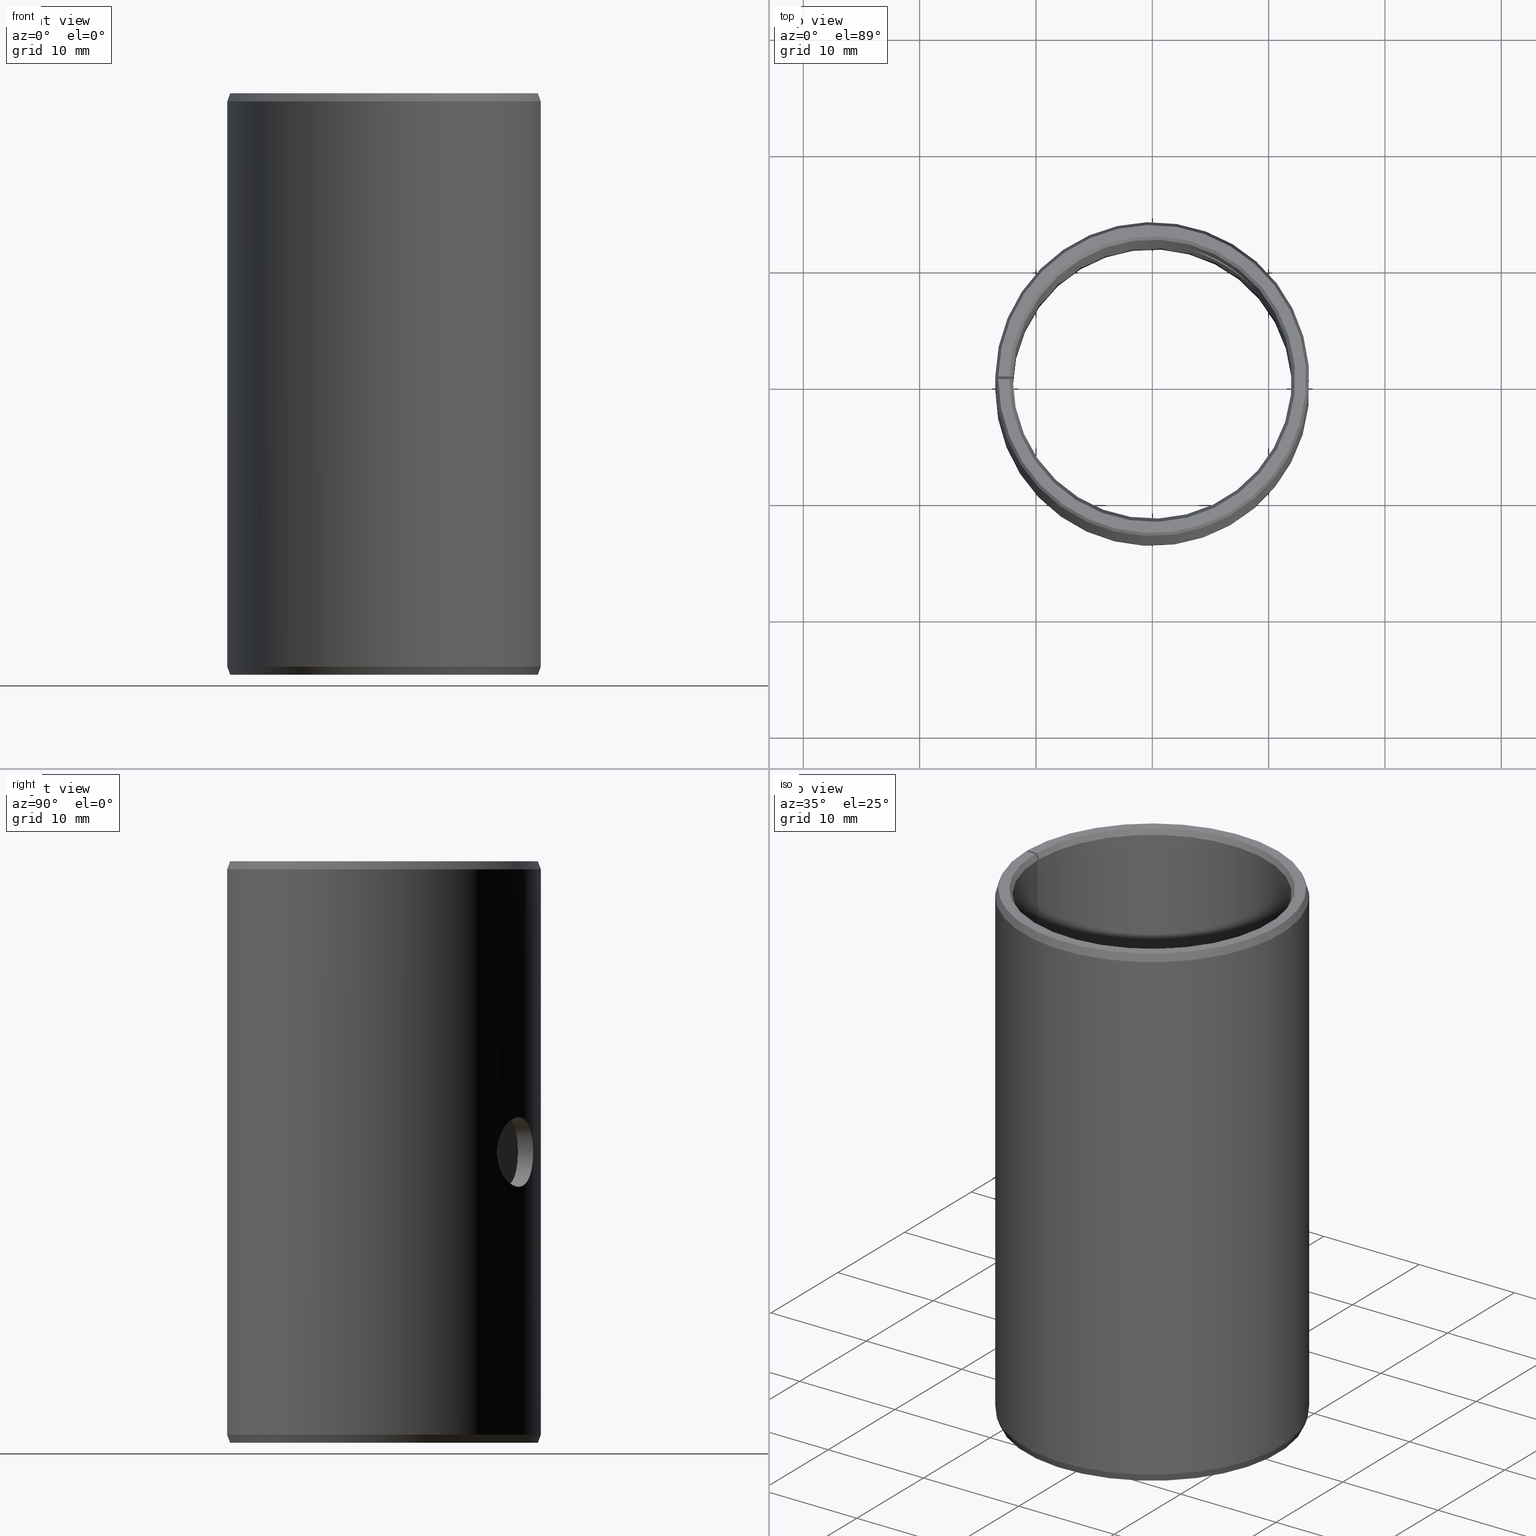
[diagram: canonical four-view strip — front | top / right | iso, engineering-drawing reading convention]
A machine part, canonical four-view strip (front | top / right | iso — engineering-drawing reading convention). The complete STEP part file that produces these views, byte-faithful:
ISO-10303-21;
HEADER;
FILE_DESCRIPTION(('STEP AP203'),'1');
FILE_NAME('440-POM2450LMB.stp','2016-09-21T04:27:03',(' '),(' '),'Spatial InterOp 3D',' ',' ');
FILE_SCHEMA(('CONFIG_CONTROL_DESIGN'));
ENDSEC;
DATA;
#1=DESIGN_CONTEXT('',#51,'design');
#2=APPLICATION_PROTOCOL_DEFINITION('INTERNATIONAL STANDARD','config_control_design',1994,#51);
#3=PRODUCT_CATEGORY_RELATIONSHIP('NONE','NONE',#52,#53);
#4=DATE_AND_TIME(#54,#55);
#5=DATE_TIME_ROLE('creation_date');
#6=DATE_TIME_ROLE('classification_date');
#7=PERSON_AND_ORGANIZATION_ROLE('creator');
#8=PERSON_AND_ORGANIZATION_ROLE('design_supplier');
#9=PERSON_AND_ORGANIZATION_ROLE('classification_officer');
#10=PERSON_AND_ORGANIZATION_ROLE('design_owner');
#11=APPROVAL_PERSON_ORGANIZATION(#56,#57,#58);
#12=APPROVAL_DATE_TIME(#4,#57);
#13=CC_DESIGN_APPROVAL(#57,(#59,#60,#61));
#14=CC_DESIGN_DATE_AND_TIME_ASSIGNMENT(#4,#5,(#61));
#15=CC_DESIGN_DATE_AND_TIME_ASSIGNMENT(#4,#6,(#59));
#16=CC_DESIGN_PERSON_AND_ORGANIZATION_ASSIGNMENT(#56,#10,(#62));
#17=CC_DESIGN_PERSON_AND_ORGANIZATION_ASSIGNMENT(#56,#7,(#61));
#18=CC_DESIGN_PERSON_AND_ORGANIZATION_ASSIGNMENT(#56,#7,(#60));
#19=CC_DESIGN_PERSON_AND_ORGANIZATION_ASSIGNMENT(#56,#8,(#60));
#20=CC_DESIGN_SECURITY_CLASSIFICATION(#59,(#60));
#21=CC_DESIGN_PERSON_AND_ORGANIZATION_ASSIGNMENT(#56,#9,(#59));
#22=SHAPE_DEFINITION_REPRESENTATION(#63,#64);
#23=DESIGN_CONTEXT('',#65,'design');
#24=APPLICATION_PROTOCOL_DEFINITION('INTERNATIONAL STANDARD','config_control_design',1994,#65);
#25=PRODUCT_CATEGORY_RELATIONSHIP('NONE','NONE',#66,#67);
#26=DATE_AND_TIME(#68,#69);
#27=DATE_TIME_ROLE('creation_date');
#28=DATE_TIME_ROLE('classification_date');
#29=PERSON_AND_ORGANIZATION_ROLE('creator');
#30=PERSON_AND_ORGANIZATION_ROLE('design_supplier');
#31=PERSON_AND_ORGANIZATION_ROLE('classification_officer');
#32=PERSON_AND_ORGANIZATION_ROLE('design_owner');
#33=APPROVAL_PERSON_ORGANIZATION(#70,#71,#72);
#34=APPROVAL_DATE_TIME(#26,#71);
#35=CC_DESIGN_APPROVAL(#71,(#73,#74,#75));
#36=CC_DESIGN_DATE_AND_TIME_ASSIGNMENT(#26,#27,(#75));
#37=CC_DESIGN_DATE_AND_TIME_ASSIGNMENT(#26,#28,(#73));
#38=CC_DESIGN_PERSON_AND_ORGANIZATION_ASSIGNMENT(#70,#32,(#76));
#39=CC_DESIGN_PERSON_AND_ORGANIZATION_ASSIGNMENT(#70,#29,(#75));
#40=CC_DESIGN_PERSON_AND_ORGANIZATION_ASSIGNMENT(#70,#29,(#74));
#41=CC_DESIGN_PERSON_AND_ORGANIZATION_ASSIGNMENT(#70,#30,(#74));
#42=CC_DESIGN_SECURITY_CLASSIFICATION(#73,(#74));
#43=CC_DESIGN_PERSON_AND_ORGANIZATION_ASSIGNMENT(#70,#31,(#73));
#44=CONTEXT_DEPENDENT_SHAPE_REPRESENTATION(#77,#78);
#45=SHAPE_DEFINITION_REPRESENTATION(#79,#80);
#46=SHAPE_REPRESENTATION_RELATIONSHIP('NONE','NONE',#80,#81);
#47= (GEOMETRIC_REPRESENTATION_CONTEXT(3)GLOBAL_UNCERTAINTY_ASSIGNED_CONTEXT((#84))GLOBAL_UNIT_ASSIGNED_CONTEXT((#86,#87,#88))REPRESENTATION_CONTEXT('NONE','WORKSPACE'));
#51=APPLICATION_CONTEXT('CONFIGURATION CONTROLLED 3D DESIGNS OF MECHANICAL PARTS AND ASSEMBLIES');
#52=PRODUCT_CATEGORY('part','NONE');
#53=PRODUCT_RELATED_PRODUCT_CATEGORY('detail',' ',(#62));
#54=CALENDAR_DATE(2016,21,8);
#55=LOCAL_TIME(6,27,3.0,#90);
#56=PERSON_AND_ORGANIZATION(#91,#92);
#57=APPROVAL(#93,'SOLID MODEL');
#58=APPROVAL_ROLE('APPROVED');
#59=SECURITY_CLASSIFICATION('','',#94);
#60=PRODUCT_DEFINITION_FORMATION_WITH_SPECIFIED_SOURCE(' ','NONE',#62,.NOT_KNOWN.);
#61=PRODUCT_DEFINITION('NONE','NONE',#60,#1);
#62=PRODUCT('','','PART--DESC',(#95));
#63=PRODUCT_DEFINITION_SHAPE('NONE','NONE',#61);
#64=SHAPE_REPRESENTATION('',(#96,#97),#98);
#65=APPLICATION_CONTEXT('CONFIGURATION CONTROLLED 3D DESIGNS OF MECHANICAL PARTS AND ASSEMBLIES');
#66=PRODUCT_CATEGORY('part','NONE');
#67=PRODUCT_RELATED_PRODUCT_CATEGORY('detail',' ',(#76));
#68=CALENDAR_DATE(2016,21,8);
#69=LOCAL_TIME(6,27,3.0,#99);
#70=PERSON_AND_ORGANIZATION(#100,#101);
#71=APPROVAL(#102,'SOLID MODEL');
#72=APPROVAL_ROLE('APPROVED');
#73=SECURITY_CLASSIFICATION('','',#103);
#74=PRODUCT_DEFINITION_FORMATION_WITH_SPECIFIED_SOURCE(' ','NONE',#76,.NOT_KNOWN.);
#75=PRODUCT_DEFINITION('440-POM2450LMB','440-POM2450LMB',#74,#23);
#76=PRODUCT('440-POM2450LMB','440-POM2450LMB','PART-440-POM2450LMB-DESC',(#104));
#77=(REPRESENTATION_RELATIONSHIP('','',#80,#64)REPRESENTATION_RELATIONSHIP_WITH_TRANSFORMATION(#107)SHAPE_REPRESENTATION_RELATIONSHIP());
#78=PRODUCT_DEFINITION_SHAPE('NAUO-PROD-DEF','NAUO-PROD-DEF',#109);
#79=PRODUCT_DEFINITION_SHAPE('NONE','NONE',#75);
#80=SHAPE_REPRESENTATION('440-POM2450LMB',(#96),#98);
#81=ADVANCED_BREP_SHAPE_REPRESENTATION('',(#110),#47);
#84=UNCERTAINTY_MEASURE_WITH_UNIT(LENGTH_MEASURE(1.0E-006),#86,'','');
#86= (CONVERSION_BASED_UNIT('METRE',#113)LENGTH_UNIT()NAMED_UNIT(#116));
#87= (NAMED_UNIT(#118)PLANE_ANGLE_UNIT()SI_UNIT($,.RADIAN.));
#88= (NAMED_UNIT(#118)SOLID_ANGLE_UNIT()SI_UNIT($,.STERADIAN.));
#90=COORDINATED_UNIVERSAL_TIME_OFFSET(1,0,.AHEAD.);
#91=PERSON('','UNSPECIFIED',$,$,$,$);
#92=ORGANIZATION('UNSPECIFIED','UNSPECIFIED','UNSPECIFIED');
#93=APPROVAL_STATUS('approved');
#94=SECURITY_CLASSIFICATION_LEVEL('unclassified');
#95=MECHANICAL_CONTEXT('',#51,'mechanical');
#96=AXIS2_PLACEMENT_3D('',#124,#125,#126);
#97=AXIS2_PLACEMENT_3D('',#127,#128,#129);
#98= (GEOMETRIC_REPRESENTATION_CONTEXT(3)GLOBAL_UNCERTAINTY_ASSIGNED_CONTEXT((#132))GLOBAL_UNIT_ASSIGNED_CONTEXT((#134,#135,#136))REPRESENTATION_CONTEXT('NONE','WORKSPACE'));
#99=COORDINATED_UNIVERSAL_TIME_OFFSET(1,0,.AHEAD.);
#100=PERSON('','UNSPECIFIED',$,$,$,$);
#101=ORGANIZATION('UNSPECIFIED','UNSPECIFIED','UNSPECIFIED');
#102=APPROVAL_STATUS('approved');
#103=SECURITY_CLASSIFICATION_LEVEL('unclassified');
#104=MECHANICAL_CONTEXT('',#65,'mechanical');
#107=ITEM_DEFINED_TRANSFORMATION('','',#96,#97);
#109=NEXT_ASSEMBLY_USAGE_OCCURRENCE('440-POM2450LMB','440-POM2450LMB','440-POM2450LMB',#61,#75,$);
#110=MANIFOLD_SOLID_BREP('',#138);
#113=LENGTH_MEASURE_WITH_UNIT(LENGTH_MEASURE(1.0),#139);
#116=DIMENSIONAL_EXPONENTS(1.0,0.0,0.0,0.0,0.0,0.0,0.0);
#118=DIMENSIONAL_EXPONENTS(0.0,0.0,0.0,0.0,0.0,0.0,0.0);
#124=CARTESIAN_POINT('',(0.0,0.0,0.0));
#125=DIRECTION('',(0.0,0.0,1.0));
#126=DIRECTION('',(1.0,0.0,0.0));
#127=CARTESIAN_POINT('',(0.0,0.0,0.0));
#128=DIRECTION('',(5.48707263966374E-016,-5.48707263966376E-016,1.0));
#129=DIRECTION('',(1.39349996950756E-015,1.0,5.48707263966375E-016));
#132=UNCERTAINTY_MEASURE_WITH_UNIT(LENGTH_MEASURE(1.0E-006),#134,'','');
#134= (CONVERSION_BASED_UNIT('METRE',#142)LENGTH_UNIT()NAMED_UNIT(#145));
#135= (NAMED_UNIT(#147)PLANE_ANGLE_UNIT()SI_UNIT($,.RADIAN.));
#136= (NAMED_UNIT(#147)SOLID_ANGLE_UNIT()SI_UNIT($,.STERADIAN.));
#138=CLOSED_SHELL('',(#153,#154,#155,#156,#157,#158,#159,#160,#161,#162,#163));
#139= (NAMED_UNIT(#116)LENGTH_UNIT()SI_UNIT($,.METRE.));
#142=LENGTH_MEASURE_WITH_UNIT(LENGTH_MEASURE(1.0),#165);
#145=DIMENSIONAL_EXPONENTS(1.0,0.0,0.0,0.0,0.0,0.0,0.0);
#147=DIMENSIONAL_EXPONENTS(0.0,0.0,0.0,0.0,0.0,0.0,0.0);
#153=ADVANCED_FACE('',(#166),#167,.F.);
#154=ADVANCED_FACE('',(#168),#169,.T.);
#155=ADVANCED_FACE('',(#170),#171,.T.);
#156=ADVANCED_FACE('',(#172),#173,.T.);
#157=ADVANCED_FACE('',(#174),#175,.T.);
#158=ADVANCED_FACE('',(#176),#177,.F.);
#159=ADVANCED_FACE('',(#178),#179,.T.);
#160=ADVANCED_FACE('',(#180),#181,.F.);
#161=ADVANCED_FACE('',(#182,#183),#184,.F.);
#162=ADVANCED_FACE('',(#185,#186),#187,.T.);
#163=ADVANCED_FACE('',(#188,#189),#190,.F.);
#165= (NAMED_UNIT(#145)LENGTH_UNIT()SI_UNIT($,.METRE.));
#166=FACE_OUTER_BOUND('',#192,.T.);
#167=CONICAL_SURFACE('',#193,0.012,0.52359877559829);
#168=FACE_OUTER_BOUND('',#194,.T.);
#169=PLANE('',#195);
#170=FACE_OUTER_BOUND('',#196,.T.);
#171=CONICAL_SURFACE('',#197,0.0132452208360137,0.349065850398869);
#172=FACE_OUTER_BOUND('',#198,.T.);
#173=CONICAL_SURFACE('',#199,0.0135,0.349065850398884);
#174=FACE_OUTER_BOUND('',#200,.T.);
#175=PLANE('',#201);
#176=FACE_OUTER_BOUND('',#202,.T.);
#177=CONICAL_SURFACE('',#203,0.0122886751345948,0.5235987755983);
#178=FACE_OUTER_BOUND('',#204,.T.);
#179=PLANE('',#205);
#180=FACE_OUTER_BOUND('',#206,.T.);
#181=PLANE('',#207);
#182=FACE_OUTER_BOUND('',#208,.T.);
#183=FACE_BOUND('',#209,.T.);
#184=CYLINDRICAL_SURFACE('',#210,0.012);
#185=FACE_OUTER_BOUND('',#211,.T.);
#186=FACE_BOUND('',#212,.T.);
#187=CYLINDRICAL_SURFACE('',#213,0.0135);
#188=FACE_OUTER_BOUND('',#214,.T.);
#189=FACE_OUTER_BOUND('',#215,.T.);
#190=CYLINDRICAL_SURFACE('',#216,0.003);
#192=EDGE_LOOP('',(#217,#218,#219,#220));
#193=AXIS2_PLACEMENT_3D('',#221,#222,#223);
#194=EDGE_LOOP('',(#224,#225,#226,#227));
#195=AXIS2_PLACEMENT_3D('',#228,#229,#230);
#196=EDGE_LOOP('',(#231,#232,#233,#234));
#197=AXIS2_PLACEMENT_3D('',#235,#236,#237);
#198=EDGE_LOOP('',(#238,#239,#240,#241));
#199=AXIS2_PLACEMENT_3D('',#242,#243,#244);
#200=EDGE_LOOP('',(#245,#246,#247,#248));
#201=AXIS2_PLACEMENT_3D('',#249,#250,#251);
#202=EDGE_LOOP('',(#252,#253,#254,#255));
#203=AXIS2_PLACEMENT_3D('',#256,#257,#258);
#204=EDGE_LOOP('',(#259,#260,#261,#262,#263,#264,#265,#266));
#205=AXIS2_PLACEMENT_3D('',#267,#268,#269);
#206=EDGE_LOOP('',(#270,#271,#272,#273,#274,#275,#276,#277));
#207=AXIS2_PLACEMENT_3D('',#278,#279,#280);
#208=EDGE_LOOP('',(#281,#282,#283,#284));
#209=EDGE_LOOP('',(#285));
#210=AXIS2_PLACEMENT_3D('',#286,#287,#288);
#211=EDGE_LOOP('',(#289,#290,#291,#292));
#212=EDGE_LOOP('',(#293));
#213=AXIS2_PLACEMENT_3D('',#294,#295,#296);
#214=EDGE_LOOP('',(#297));
#215=EDGE_LOOP('',(#298));
#216=AXIS2_PLACEMENT_3D('',#299,#300,#301);
#217=ORIENTED_EDGE('',*,*,#302,.T.);
#218=ORIENTED_EDGE('',*,*,#303,.F.);
#219=ORIENTED_EDGE('',*,*,#304,.F.);
#220=ORIENTED_EDGE('',*,*,#305,.T.);
#221=CARTESIAN_POINT('',(-6.93889390390723E-018,-6.93889390390723E-018,0.0005));
#222=DIRECTION('',(6.12323399573677E-017,-0.0,-1.0));
#223=DIRECTION('',(-1.0,0.0,-6.12323399573677E-017));
#224=ORIENTED_EDGE('',*,*,#306,.T.);
#225=ORIENTED_EDGE('',*,*,#307,.F.);
#226=ORIENTED_EDGE('',*,*,#302,.F.);
#227=ORIENTED_EDGE('',*,*,#308,.T.);
#228=CARTESIAN_POINT('',(0.000214466953024683,0.0122868035098503,-9.52879038713218E-020));
#229=DIRECTION('',(6.12323399573677E-017,0.0,-1.0));
#230=DIRECTION('',(-1.0,0.0,-6.12323399573677E-017));
#231=ORIENTED_EDGE('',*,*,#309,.T.);
#232=ORIENTED_EDGE('',*,*,#310,.F.);
#233=ORIENTED_EDGE('',*,*,#306,.F.);
#234=ORIENTED_EDGE('',*,*,#311,.T.);
#235=CARTESIAN_POINT('',(-6.93889390390723E-018,-6.93889390390723E-018,-1.0842021724855E-019));
#236=DIRECTION('',(-6.12323399573677E-017,0.0,1.0));
#237=DIRECTION('',(1.0,0.0,6.12323399573677E-017));
#238=ORIENTED_EDGE('',*,*,#312,.T.);
#239=ORIENTED_EDGE('',*,*,#313,.F.);
#240=ORIENTED_EDGE('',*,*,#314,.F.);
#241=ORIENTED_EDGE('',*,*,#315,.T.);
#242=CARTESIAN_POINT('',(-1.04083408558608E-017,-6.93889390390723E-018,0.0493));
#243=DIRECTION('',(6.12323399573677E-017,-0.0,-1.0));
#244=DIRECTION('',(-1.0,0.0,-6.12323399573677E-017));
#245=ORIENTED_EDGE('',*,*,#316,.T.);
#246=ORIENTED_EDGE('',*,*,#317,.T.);
#247=ORIENTED_EDGE('',*,*,#318,.F.);
#248=ORIENTED_EDGE('',*,*,#312,.F.);
#249=CARTESIAN_POINT('',(0.000231160977381676,0.0132432035247257,0.05));
#250=DIRECTION('',(-6.12323399573677E-017,0.0,1.0));
#251=DIRECTION('',(1.0,0.0,6.12323399573677E-017));
#252=ORIENTED_EDGE('',*,*,#319,.T.);
#253=ORIENTED_EDGE('',*,*,#320,.F.);
#254=ORIENTED_EDGE('',*,*,#317,.F.);
#255=ORIENTED_EDGE('',*,*,#321,.T.);
#256=CARTESIAN_POINT('',(-1.04083408558608E-017,-6.93889390390723E-018,0.05));
#257=DIRECTION('',(-6.12323399573677E-017,0.0,1.0));
#258=DIRECTION('',(1.0,0.0,6.12323399573677E-017));
#259=ORIENTED_EDGE('',*,*,#320,.T.);
#260=ORIENTED_EDGE('',*,*,#322,.T.);
#261=ORIENTED_EDGE('',*,*,#303,.T.);
#262=ORIENTED_EDGE('',*,*,#307,.T.);
#263=ORIENTED_EDGE('',*,*,#310,.T.);
#264=ORIENTED_EDGE('',*,*,#323,.T.);
#265=ORIENTED_EDGE('',*,*,#313,.T.);
#266=ORIENTED_EDGE('',*,*,#318,.T.);
#267=CARTESIAN_POINT('',(-6.93889390390723E-018,-0.014,0.0));
#268=DIRECTION('',(1.0,0.0,0.0));
#269=DIRECTION('',(0.0,0.0,-1.0));
#270=ORIENTED_EDGE('',*,*,#321,.F.);
#271=ORIENTED_EDGE('',*,*,#316,.F.);
#272=ORIENTED_EDGE('',*,*,#315,.F.);
#273=ORIENTED_EDGE('',*,*,#324,.F.);
#274=ORIENTED_EDGE('',*,*,#311,.F.);
#275=ORIENTED_EDGE('',*,*,#308,.F.);
#276=ORIENTED_EDGE('',*,*,#305,.F.);
#277=ORIENTED_EDGE('',*,*,#325,.F.);
#278=CARTESIAN_POINT('',(-0.000244333690121977,-0.0139978677321895,-1.49611235765866E-020));
#279=DIRECTION('',(0.999847695156391,-0.0174524064372836,-9.3259819610035E-021));
#280=DIRECTION('',(9.32598196100733E-021,1.0686516840419E-018,-1.0));
#281=ORIENTED_EDGE('',*,*,#304,.T.);
#282=ORIENTED_EDGE('',*,*,#322,.F.);
#283=ORIENTED_EDGE('',*,*,#319,.F.);
#284=ORIENTED_EDGE('',*,*,#325,.T.);
#285=ORIENTED_EDGE('',*,*,#326,.T.);
#286=CARTESIAN_POINT('',(-6.93889390390723E-018,-6.93889390390723E-018,0.0));
#287=DIRECTION('',(6.12323399573677E-017,0.0,-1.0));
#288=DIRECTION('',(-1.0,0.0,-6.12323399573677E-017));
#289=ORIENTED_EDGE('',*,*,#314,.T.);
#290=ORIENTED_EDGE('',*,*,#323,.F.);
#291=ORIENTED_EDGE('',*,*,#309,.F.);
#292=ORIENTED_EDGE('',*,*,#324,.T.);
#293=ORIENTED_EDGE('',*,*,#327,.T.);
#294=CARTESIAN_POINT('',(-6.93889390390723E-018,-6.93889390390723E-018,0.0));
#295=DIRECTION('',(6.12323399573677E-017,0.0,-1.0));
#296=DIRECTION('',(-1.0,0.0,-6.12323399573677E-017));
#297=ORIENTED_EDGE('',*,*,#326,.F.);
#298=ORIENTED_EDGE('',*,*,#327,.F.);
#299=CARTESIAN_POINT('',(0.00728592205598323,-0.00437782363671001,0.025));
#300=DIRECTION('',(0.857167300703911,-0.515038074907061,0.0));
#301=DIRECTION('',(-0.515038074907061,-0.857167300703911,0.0));
#302=EDGE_CURVE('',#328,#329,#330,.T.);
#303=EDGE_CURVE('',#331,#329,#332,.T.);
#304=EDGE_CURVE('',#333,#331,#334,.T.);
#305=EDGE_CURVE('',#333,#328,#335,.T.);
#306=EDGE_CURVE('',#336,#337,#338,.T.);
#307=EDGE_CURVE('',#329,#337,#339,.T.);
#308=EDGE_CURVE('',#328,#336,#340,.T.);
#309=EDGE_CURVE('',#341,#342,#343,.T.);
#310=EDGE_CURVE('',#337,#342,#344,.T.);
#311=EDGE_CURVE('',#336,#341,#345,.T.);
#312=EDGE_CURVE('',#346,#347,#348,.T.);
#313=EDGE_CURVE('',#349,#347,#350,.T.);
#314=EDGE_CURVE('',#351,#349,#352,.T.);
#315=EDGE_CURVE('',#351,#346,#353,.T.);
#316=EDGE_CURVE('',#346,#354,#355,.T.);
#317=EDGE_CURVE('',#354,#356,#357,.T.);
#318=EDGE_CURVE('',#347,#356,#358,.T.);
#319=EDGE_CURVE('',#359,#360,#361,.T.);
#320=EDGE_CURVE('',#356,#360,#362,.T.);
#321=EDGE_CURVE('',#354,#359,#363,.T.);
#322=EDGE_CURVE('',#360,#331,#364,.T.);
#323=EDGE_CURVE('',#342,#349,#365,.T.);
#324=EDGE_CURVE('',#341,#351,#366,.T.);
#325=EDGE_CURVE('',#359,#333,#367,.T.);
#326=EDGE_CURVE('',#368,#368,#369,.T.);
#327=EDGE_CURVE('',#370,#370,#371,.T.);
#328=VERTEX_POINT('',#372);
#329=VERTEX_POINT('',#373);
#330=CIRCLE('',#374,0.0122886751345948);
#331=VERTEX_POINT('',#375);
#332=LINE('',#376,#377);
#333=VERTEX_POINT('',#378);
#334=CIRCLE('',#379,0.012);
#335=LINE('',#380,#381);
#336=VERTEX_POINT('',#382);
#337=VERTEX_POINT('',#383);
#338=CIRCLE('',#384,0.0132452208360137);
#339=LINE('',#385,#386);
#340=LINE('',#387,#388);
#341=VERTEX_POINT('',#389);
#342=VERTEX_POINT('',#390);
#343=CIRCLE('',#391,0.0135);
#344=LINE('',#392,#393);
#345=LINE('',#394,#395);
#346=VERTEX_POINT('',#396);
#347=VERTEX_POINT('',#397);
#348=CIRCLE('',#398,0.0132452208360137);
#349=VERTEX_POINT('',#399);
#350=LINE('',#400,#401);
#351=VERTEX_POINT('',#402);
#352=CIRCLE('',#403,0.0135);
#353=LINE('',#404,#405);
#354=VERTEX_POINT('',#406);
#355=LINE('',#407,#408);
#356=VERTEX_POINT('',#409);
#357=CIRCLE('',#410,0.0122886751345948);
#358=LINE('',#411,#412);
#359=VERTEX_POINT('',#413);
#360=VERTEX_POINT('',#414);
#361=CIRCLE('',#415,0.012);
#362=LINE('',#416,#417);
#363=LINE('',#418,#419);
#364=LINE('',#420,#421);
#365=LINE('',#422,#423);
#366=LINE('',#424,#425);
#367=LINE('',#426,#427);
#368=VERTEX_POINT('',#428);
#369=B_SPLINE_CURVE_WITH_KNOTS('',3,(#429,#430,#431,#432,#433,#434,#435,#436,#437,#438,#439,#440,#441,#442,#443,#444,#445,#446,#447,#448,#449,#450,#451,#452,#453,#454,#455,#456,#457,#458,#459,#460,#461,#462,#463,#464,#465,#466,#467,#468,#469,#470,#471,#472,#473,#474,#475,#476,#477,#478,#479,#480,#481,#482,#483,#484,#485,#486,#487,#488,#489,#490),.UNSPECIFIED.,.T.,.F.,(2,2,2,2,2,2,2,2,2,2,2,2,2,2,2,2,2,2,2,2,2,2,2,2,2,2,2,2,2,2,2,2,2),(-0.000588468026522763,0.0,0.000588468026522759,0.00117693605304552,0.00176540407956828,0.00235387210609103,0.00294234013261379,0.00353080815913655,0.00411927618565931,0.00470774421218207,0.00529621223870483,0.00588468026522759,0.00706161631827311,0.00765008434479587,0.00823855237131864,0.0088270203978414,0.00941548842436416,0.0105924244774097,0.0111808925039324,0.0117693605304552,0.012357828556978,0.0129462965835007,0.0135347646100235,0.0141232326365463,0.014711700663069,0.0153001686895918,0.0158886367161146,0.0164771047426373,0.0170655727691601,0.0176540407956828,0.0182425088222056,0.0188309768487284,0.0194194448752511),.UNSPECIFIED.);
#370=VERTEX_POINT('',#491);
#371=B_SPLINE_CURVE_WITH_KNOTS('',3,(#492,#493,#494,#495,#496,#497,#498,#499,#500,#501,#502,#503,#504,#505,#506,#507,#508,#509,#510,#511,#512,#513,#514,#515,#516,#517,#518,#519,#520,#521,#522,#523,#524,#525,#526,#527,#528,#529,#530,#531,#532,#533,#534,#535,#536,#537,#538,#539,#540,#541,#542,#543,#544,#545,#546,#547,#548,#549,#550,#551,#552,#553),.UNSPECIFIED.,.T.,.F.,(2,2,2,2,2,2,2,2,2,2,2,2,2,2,2,2,2,2,2,2,2,2,2,2,2,2,2,2,2,2,2,2,2),(-0.000587969418490893,0.0,0.000587969418490897,0.00117593883698179,0.00176390825547269,0.00235187767396359,0.00293984709245449,0.00352781651094538,0.00411578592943628,0.00470375534792718,0.00529172476641808,0.00587969418490898,0.00646766360339988,0.00705563302189078,0.00764360244038168,0.00823157185887258,0.00881954127736347,0.00940751069585437,0.0105834495328362,0.0111714189513271,0.0117593883698179,0.0123473577883088,0.0129353272067997,0.0141112660437815,0.0146992354622724,0.0152872048807633,0.0158751742992542,0.0164631437177451,0.017051113136236,0.0176390825547269,0.0182270519732178,0.0188150213917086,0.0194029908101995),.UNSPECIFIED.);
#372=CARTESIAN_POINT('',(0.000214466953024683,0.0122868035098503,-9.52879038713219E-020));
#373=CARTESIAN_POINT('',(-6.93889390390723E-018,0.0122886751345948,-1.0842021724855E-019));
#374=AXIS2_PLACEMENT_3D('',#554,#555,#556);
#375=CARTESIAN_POINT('',(-6.93889390390723E-018,0.012,0.0005));
#376=CARTESIAN_POINT('',(-6.93889390390723E-018,0.012,0.0005));
#377=VECTOR('',#557,1.0);
#378=CARTESIAN_POINT('',(0.000209428877247395,0.0119981723418767,0.0005));
#379=AXIS2_PLACEMENT_3D('',#558,#559,#560);
#380=CARTESIAN_POINT('',(0.000209428877247395,0.0119981723418767,0.0005));
#381=VECTOR('',#561,1.0);
#382=CARTESIAN_POINT('',(0.00023116097738168,0.0132432035247257,-9.42656896966376E-020));
#383=CARTESIAN_POINT('',(-6.93889390390723E-018,0.0132452208360137,-1.0842021724855E-019));
#384=AXIS2_PLACEMENT_3D('',#562,#563,#564);
#385=CARTESIAN_POINT('',(-6.93889390390723E-018,0.0122886751345948,-1.17143063148078E-019));
#386=VECTOR('',#565,1.0);
#387=CARTESIAN_POINT('',(0.000214466953024683,0.0122868035098503,-1.04010749770849E-019));
#388=VECTOR('',#566,1.0);
#389=CARTESIAN_POINT('',(0.000235607486903322,0.0134979438846113,0.0007));
#390=CARTESIAN_POINT('',(-6.93889390390723E-018,0.0135,0.0007));
#391=AXIS2_PLACEMENT_3D('',#567,#568,#569);
#392=CARTESIAN_POINT('',(-6.93889390390723E-018,0.0132452208360137,-1.0842021724855E-019));
#393=VECTOR('',#570,1.0);
#394=CARTESIAN_POINT('',(0.00023116097738168,0.0132432035247257,-9.42656896966376E-020));
#395=VECTOR('',#571,1.0);
#396=CARTESIAN_POINT('',(0.000231160977381676,0.0132432035247257,0.05));
#397=CARTESIAN_POINT('',(-1.04083408558608E-017,0.0132452208360136,0.05));
#398=AXIS2_PLACEMENT_3D('',#572,#573,#574);
#399=CARTESIAN_POINT('',(-1.04083408558608E-017,0.0135,0.0493));
#400=CARTESIAN_POINT('',(-1.04083408558608E-017,0.0135,0.0493));
#401=VECTOR('',#575,1.0);
#402=CARTESIAN_POINT('',(0.000235607486903318,0.0134979438846113,0.0493));
#403=AXIS2_PLACEMENT_3D('',#576,#577,#578);
#404=CARTESIAN_POINT('',(0.000235607486903318,0.0134979438846113,0.0493));
#405=VECTOR('',#579,1.0);
#406=CARTESIAN_POINT('',(0.000214466953024678,0.0122868035098503,0.05));
#407=CARTESIAN_POINT('',(0.000231160977381676,0.0132432035247257,0.05));
#408=VECTOR('',#580,1.0);
#409=CARTESIAN_POINT('',(-1.04083408558608E-017,0.0122886751345948,0.05));
#410=AXIS2_PLACEMENT_3D('',#581,#582,#583);
#411=CARTESIAN_POINT('',(-1.04083408558608E-017,0.0132452208360136,0.05));
#412=VECTOR('',#584,1.0);
#413=CARTESIAN_POINT('',(0.000209428877247392,0.0119981723418767,0.0495));
#414=CARTESIAN_POINT('',(-1.04083408558608E-017,0.012,0.0495));
#415=AXIS2_PLACEMENT_3D('',#585,#586,#587);
#416=CARTESIAN_POINT('',(-1.04083408558608E-017,0.0122886751345948,0.05));
#417=VECTOR('',#588,1.0);
#418=CARTESIAN_POINT('',(0.000214466953024678,0.0122868035098503,0.05));
#419=VECTOR('',#589,1.0);
#420=CARTESIAN_POINT('',(-1.04083408558608E-017,0.012,0.0495));
#421=VECTOR('',#590,1.0);
#422=CARTESIAN_POINT('',(-6.93889390390723E-018,0.0135,0.0007));
#423=VECTOR('',#591,1.0);
#424=CARTESIAN_POINT('',(0.000235607486903322,0.0134979438846113,0.0007));
#425=VECTOR('',#592,1.0);
#426=CARTESIAN_POINT('',(0.000209428877247392,0.0119981723418767,0.0495));
#427=VECTOR('',#593,1.0);
#428=CARTESIAN_POINT('',(0.00841426981689825,-0.00855570356244505,0.025));
#429=CARTESIAN_POINT('',(0.00841426981689825,-0.00855570356244505,0.0251990449473492));
#430=CARTESIAN_POINT('',(0.00841426981689825,-0.00855570356244505,0.0248009550526508));
#431=CARTESIAN_POINT('',(0.00842875350383115,-0.00854152671398362,0.0246054011197299));
#432=CARTESIAN_POINT('',(0.00848487324014926,-0.00848578165713924,0.0242209368523515));
#433=CARTESIAN_POINT('',(0.00852721813714572,-0.00844349208644895,0.0240299884480397));
#434=CARTESIAN_POINT('',(0.00863557768804172,-0.00833263498337644,0.0236671075437146));
#435=CARTESIAN_POINT('',(0.00870116977481795,-0.00826450376791034,0.0234951236406336));
#436=CARTESIAN_POINT('',(0.00885290730711671,-0.00810175352572573,0.0231696370721684));
#437=CARTESIAN_POINT('',(0.00893944985612611,-0.00800661167262193,0.0230161759386213));
#438=CARTESIAN_POINT('',(0.00912378530128684,-0.00779590507782009,0.0227406895098723));
#439=CARTESIAN_POINT('',(0.00922235911067506,-0.00767954839458687,0.022616778036519));
#440=CARTESIAN_POINT('',(0.00943056713842511,-0.00742238334759862,0.0223974096405042));
#441=CARTESIAN_POINT('',(0.00953772956661927,-0.0072845408882955,0.0223047247102136));
#442=CARTESIAN_POINT('',(0.00975328491359259,-0.00699330069663098,0.0221548160513335));
#443=CARTESIAN_POINT('',(0.00986318922088336,-0.00683777378288039,0.0220967623942747));
#444=CARTESIAN_POINT('',(0.0100791096286791,-0.00651530513528452,0.0220193703950625));
#445=CARTESIAN_POINT('',(0.0101837970544807,-0.00635050413899659,0.0220001229658471));
#446=CARTESIAN_POINT('',(0.0103862935808339,-0.00601361213572935,0.0219998781974757));
#447=CARTESIAN_POINT('',(0.0104848899954299,-0.00583988894856468,0.0220195479996157));
#448=CARTESIAN_POINT('',(0.0106672021162408,-0.00549982001151877,0.0220964501939685));
#449=CARTESIAN_POINT('',(0.0107518694342512,-0.0053320519411269,0.0221533404516438));
#450=CARTESIAN_POINT('',(0.0109882039497349,-0.00483665906336911,0.0223799325684459));
#451=CARTESIAN_POINT('',(0.0111161988681034,-0.00452878123628558,0.0226007143265412));
#452=CARTESIAN_POINT('',(0.0112667354427916,-0.00413286905823101,0.0230175905645678));
#453=CARTESIAN_POINT('',(0.0113092079860092,-0.00401424188122855,0.0231681753053526));
#454=CARTESIAN_POINT('',(0.0113815361296043,-0.00380433417069751,0.023492352632688));
#455=CARTESIAN_POINT('',(0.0114115697038727,-0.00371241841713823,0.0236680238445403));
#456=CARTESIAN_POINT('',(0.0114584425787273,-0.00356511812991683,0.024030050386604));
#457=CARTESIAN_POINT('',(0.0114756129957759,-0.00350883200657095,0.0242170510303377));
#458=CARTESIAN_POINT('',(0.0114987190211594,-0.00343235437441769,0.0246033243785492));
#459=CARTESIAN_POINT('',(0.0115044735792664,-0.00341278298042064,0.0248024879044213));
#460=CARTESIAN_POINT('',(0.0115045473995797,-0.00341253412594953,0.0253911818354602));
#461=CARTESIAN_POINT('',(0.0114819599544979,-0.00349117518271568,0.025787447863805));
#462=CARTESIAN_POINT('',(0.011411941280585,-0.00371126977552905,0.0263295341284488));
#463=CARTESIAN_POINT('',(0.0113820518748178,-0.00380280021454025,0.02650501886439));
#464=CARTESIAN_POINT('',(0.0113095378546977,-0.00401332130110592,0.0268306594538707));
#465=CARTESIAN_POINT('',(0.011267073872376,-0.00413192024187026,0.0269811927981881));
#466=CARTESIAN_POINT('',(0.011167299282029,-0.00439444482003683,0.0272580508219462));
#467=CARTESIAN_POINT('',(0.01110969615175,-0.00453887817762387,0.0273841593998566));
#468=CARTESIAN_POINT('',(0.0109818330874716,-0.00484005224501063,0.0276011498071747));
#469=CARTESIAN_POINT('',(0.0109110873872103,-0.00499817762016606,0.0276936785840565));
#470=CARTESIAN_POINT('',(0.0107533173558032,-0.00532914377170005,0.0278455913868022));
#471=CARTESIAN_POINT('',(0.0106680111857357,-0.00549822657914197,0.0279030256154111));
#472=CARTESIAN_POINT('',(0.0104864139743404,-0.00583712944291304,0.0279799897392131));
#473=CARTESIAN_POINT('',(0.0103887086459243,-0.00600948383914492,0.0279998973420858));
#474=CARTESIAN_POINT('',(0.0101849031807297,-0.00634877236495443,0.028000101856917));
#475=CARTESIAN_POINT('',(0.0100801625787052,-0.00651364295284485,0.0279808113732937));
#476=CARTESIAN_POINT('',(0.00986556027017239,-0.00683432093816719,0.0279042799993871));
#477=CARTESIAN_POINT('',(0.00975479683318725,-0.00699120835545114,0.0278461047253107));
#478=CARTESIAN_POINT('',(0.00953852066043413,-0.00728352106721473,0.0276959547668479));
#479=CARTESIAN_POINT('',(0.00943201518175579,-0.00742053807110971,0.0276039047120967));
#480=CARTESIAN_POINT('',(0.00922414942958778,-0.00767739297901936,0.027385316288492));
#481=CARTESIAN_POINT('',(0.00912443039698272,-0.00779514950967788,0.0272601590632023));
#482=CARTESIAN_POINT('',(0.00894015176193252,-0.00800582740391201,0.026984987719451));
#483=CARTESIAN_POINT('',(0.00885420641928693,-0.00810034286897499,0.0268329099101025));
#484=CARTESIAN_POINT('',(0.0087015819869617,-0.0082640787045187,0.0265059976015387));
#485=CARTESIAN_POINT('',(0.00863601049703109,-0.00833218422150574,0.0263339858406783));
#486=CARTESIAN_POINT('',(0.0085279891471626,-0.00844271119438639,0.0259729456390652));
#487=CARTESIAN_POINT('',(0.0084853609293192,-0.00848529559037579,0.02578183154418));
#488=CARTESIAN_POINT('',(0.00842875837019892,-0.00854152349956782,0.0253951999072455));
#489=CARTESIAN_POINT('',(0.00841426981689825,-0.00855570356244505,0.0251990449473492));
#490=CARTESIAN_POINT('',(0.00841426981689825,-0.00855570356244505,0.0248009550526508));
#491=CARTESIAN_POINT('',(0.0097373045818496,-0.00935066305030242,0.025));
#492=CARTESIAN_POINT('',(0.0097373045818496,-0.00935066305030242,0.0248011380342038));
#493=CARTESIAN_POINT('',(0.0097373045818496,-0.00935066305030242,0.0251988619657962));
#494=CARTESIAN_POINT('',(0.00975124862007258,-0.00933620317293633,0.0253942724336147));
#495=CARTESIAN_POINT('',(0.00980535013140584,-0.00927936679614257,0.0257785134457349));
#496=CARTESIAN_POINT('',(0.00984618562650761,-0.0092362634345276,0.0259693750867953));
#497=CARTESIAN_POINT('',(0.00995094397365339,-0.00912330245343471,0.0263323502243402));
#498=CARTESIAN_POINT('',(0.0100144338941935,-0.00905391502510291,0.0265044058844767));
#499=CARTESIAN_POINT('',(0.0101616150589776,-0.00888841059448291,0.0268300273953469));
#500=CARTESIAN_POINT('',(0.0102457748008799,-0.00879167777232692,0.0269836987669978));
#501=CARTESIAN_POINT('',(0.0104254401307962,-0.00857786088730506,0.0272594447246968));
#502=CARTESIAN_POINT('',(0.0105216908143253,-0.00845998159078228,0.0273834104064169));
#503=CARTESIAN_POINT('',(0.0107254676840508,-0.00820009811325533,0.0276027599819277));
#504=CARTESIAN_POINT('',(0.0108307892434003,-0.00806081708683645,0.0276955610304147));
#505=CARTESIAN_POINT('',(0.0110430279866335,-0.00776751573083823,0.0278454015592844));
#506=CARTESIAN_POINT('',(0.011151470202168,-0.00761132898151323,0.0279033547054913));
#507=CARTESIAN_POINT('',(0.0113655213340163,-0.00728783516146488,0.0279806743853708));
#508=CARTESIAN_POINT('',(0.0114696785617597,-0.00712285213028316,0.0279998805778712));
#509=CARTESIAN_POINT('',(0.0116719673822203,-0.00678628957592835,0.0280001183224352));
#510=CARTESIAN_POINT('',(0.0117709435290553,-0.00661302214348635,0.0279804913064234));
#511=CARTESIAN_POINT('',(0.0119549957195799,-0.00627417331441172,0.0279036751715512));
#512=CARTESIAN_POINT('',(0.0120409475513554,-0.0061072865016386,0.0278468468710592));
#513=CARTESIAN_POINT('',(0.0122017810278606,-0.00577926518648609,0.0276959893822675));
#514=CARTESIAN_POINT('',(0.0122757253807841,-0.00561989956625982,0.027602346955519));
#515=CARTESIAN_POINT('',(0.012408164939234,-0.00532110398320117,0.0273855005688706));
#516=CARTESIAN_POINT('',(0.0124677430787785,-0.00517931082737325,0.0272607806621671));
#517=CARTESIAN_POINT('',(0.0125731940729632,-0.00491779106190762,0.0269823701575916));
#518=CARTESIAN_POINT('',(0.0126181336743616,-0.00480051170455936,0.0268315936742727));
#519=CARTESIAN_POINT('',(0.0126950233000116,-0.00459332052679019,0.0265073045544945));
#520=CARTESIAN_POINT('',(0.0127271907221988,-0.00450272410258477,0.0263316526613318));
#521=CARTESIAN_POINT('',(0.0127776373929197,-0.00435750968768635,0.0259693241368877));
#522=CARTESIAN_POINT('',(0.0127962119980307,-0.00430215378843201,0.0257823357148089));
#523=CARTESIAN_POINT('',(0.0128212352869199,-0.00422699591143713,0.0253965167723562));
#524=CARTESIAN_POINT('',(0.0128275068298501,-0.00420773912418192,0.0251973684594607));
#525=CARTESIAN_POINT('',(0.0128275851845106,-0.0042075002510057,0.0246090124931992));
#526=CARTESIAN_POINT('',(0.0128029040575054,-0.00428474481221331,0.0242130479027939));
#527=CARTESIAN_POINT('',(0.0127276372477682,-0.00450145506387575,0.0236711103480687));
#528=CARTESIAN_POINT('',(0.0126956696625482,-0.00459154457338801,0.0234957662734431));
#529=CARTESIAN_POINT('',(0.0126184889424393,-0.00479958816561294,0.0231695644096878));
#530=CARTESIAN_POINT('',(0.0125735601956689,-0.00491682404034003,0.0230189214081414));
#531=CARTESIAN_POINT('',(0.0124689579218468,-0.00517635614897084,0.0227421066911117));
#532=CARTESIAN_POINT('',(0.0124088131526058,-0.00531959335070245,0.0226157391575216));
#533=CARTESIAN_POINT('',(0.0122763781095903,-0.00561847468477794,0.0223985451244275));
#534=CARTESIAN_POINT('',(0.0122036142256951,-0.00577539911902595,0.0223060930157306));
#535=CARTESIAN_POINT('',(0.0119622646283131,-0.00626801129360359,0.022078636880194));
#536=CARTESIAN_POINT('',(0.0117766362910895,-0.00661193315673223,0.022000248105465));
#537=CARTESIAN_POINT('',(0.0114707681549133,-0.0071211434149758,0.0219998768262758));
#538=CARTESIAN_POINT('',(0.0113665357163797,-0.00728621768754947,0.0220191666072804));
#539=CARTESIAN_POINT('',(0.0111540295525194,-0.00760754409278171,0.0220955168546354));
#540=CARTESIAN_POINT('',(0.011044683709234,-0.00776517908851831,0.0221535735248373));
#541=CARTESIAN_POINT('',(0.0108315963543484,-0.00805974968161226,0.0223037267804003));
#542=CARTESIAN_POINT('',(0.0107271065680108,-0.00819794554208486,0.0223957372184096));
#543=CARTESIAN_POINT('',(0.0105239123925699,-0.00845720960991062,0.0226139418327853));
#544=CARTESIAN_POINT('',(0.0104261714734265,-0.00857697138051098,0.0227395691528716));
#545=CARTESIAN_POINT('',(0.0102465694682954,-0.00879075103656075,0.0230149464261903));
#546=CARTESIAN_POINT('',(0.0101633812549905,-0.00888640337931321,0.0231663929158435));
#547=CARTESIAN_POINT('',(0.0100149063189689,-0.00905340460691101,0.0234942260207894));
#548=CARTESIAN_POINT('',(0.00995139788985065,-0.00912280500237048,0.023666474301779));
#549=CARTESIAN_POINT('',(0.0098470237530859,-0.00923536757685161,0.0240273285059612));
#550=CARTESIAN_POINT('',(0.00980594002894295,-0.00927874523384725,0.0242180152669528));
#551=CARTESIAN_POINT('',(0.00975125258018569,-0.00933620083777607,0.0246049889158503));
#552=CARTESIAN_POINT('',(0.0097373045818496,-0.00935066305030242,0.0248011380342038));
#553=CARTESIAN_POINT('',(0.0097373045818496,-0.00935066305030242,0.0251988619657962));
#554=CARTESIAN_POINT('',(-6.93889390390723E-018,-6.93889390390723E-018,-1.0842021724855E-019));
#555=DIRECTION('',(6.12323399573677E-017,0.0,-1.0));
#556=DIRECTION('',(-1.0,0.0,-6.12323399573677E-017));
#557=DIRECTION('',(0.0,0.499999999999999,-0.866025403784439));
#558=CARTESIAN_POINT('',(-6.93889390390723E-018,-6.93889390390723E-018,0.0005));
#559=DIRECTION('',(6.12323399573677E-017,0.0,-1.0));
#560=DIRECTION('',(-1.0,0.0,-6.12323399573677E-017));
#561=DIRECTION('',(0.00872620321864171,0.499923847578191,-0.866025403784441));
#562=CARTESIAN_POINT('',(-6.93889390390723E-018,-6.93889390390723E-018,-1.0842021724855E-019));
#563=DIRECTION('',(6.12323399573677E-017,0.0,-1.0));
#564=DIRECTION('',(-1.0,0.0,-6.12323399573677E-017));
#565=DIRECTION('',(0.0,1.0,9.11911044771708E-018));
#566=DIRECTION('',(0.0174524064372836,0.999847695156391,1.0187762131759E-017));
#567=CARTESIAN_POINT('',(-6.93889390390723E-018,-6.93889390390723E-018,0.0007));
#568=DIRECTION('',(6.12323399573677E-017,0.0,-1.0));
#569=DIRECTION('',(-1.0,0.0,-6.12323399573677E-017));
#570=DIRECTION('',(0.0,0.34202014332567,0.939692620785908));
#571=DIRECTION('',(0.00596907455105756,0.341968052001229,0.939692620785908));
#572=CARTESIAN_POINT('',(-1.04083408558608E-017,-6.93889390390723E-018,0.05));
#573=DIRECTION('',(6.12323399573677E-017,0.0,-1.0));
#574=DIRECTION('',(-1.0,0.0,-6.12323399573677E-017));
#575=DIRECTION('',(0.0,-0.342020143325686,0.939692620785902));
#576=CARTESIAN_POINT('',(-1.04083408558608E-017,-6.93889390390723E-018,0.0493));
#577=DIRECTION('',(6.12323399573677E-017,0.0,-1.0));
#578=DIRECTION('',(-1.0,0.0,-6.12323399573677E-017));
#579=DIRECTION('',(-0.00596907455105784,-0.341968052001246,0.939692620785902));
#580=DIRECTION('',(-0.0174524064372836,-0.999847695156391,-1.0686516840419E-018));
#581=CARTESIAN_POINT('',(-1.04083408558608E-017,-6.93889390390723E-018,0.05));
#582=DIRECTION('',(6.12323399573677E-017,0.0,-1.0));
#583=DIRECTION('',(-1.0,0.0,-6.12323399573677E-017));
#584=DIRECTION('',(0.0,-1.0,0.0));
#585=CARTESIAN_POINT('',(-1.04083408558608E-017,-6.93889390390723E-018,0.0495));
#586=DIRECTION('',(6.12323399573677E-017,0.0,-1.0));
#587=DIRECTION('',(-1.0,0.0,-6.12323399573677E-017));
#588=DIRECTION('',(0.0,-0.500000000000001,-0.866025403784438));
#589=DIRECTION('',(-0.00872620321864186,-0.4999238475782,-0.866025403784436));
#590=DIRECTION('',(7.08050398357881E-017,2.12415119507364E-016,-1.0));
#591=DIRECTION('',(-7.13877973653007E-017,0.0,1.0));
#592=DIRECTION('',(-7.13862506399484E-017,1.77237170239769E-019,1.0));
#593=DIRECTION('',(7.45107368662969E-017,2.12215701006827E-016,-1.0));
ENDSEC;
END-ISO-10303-21;
